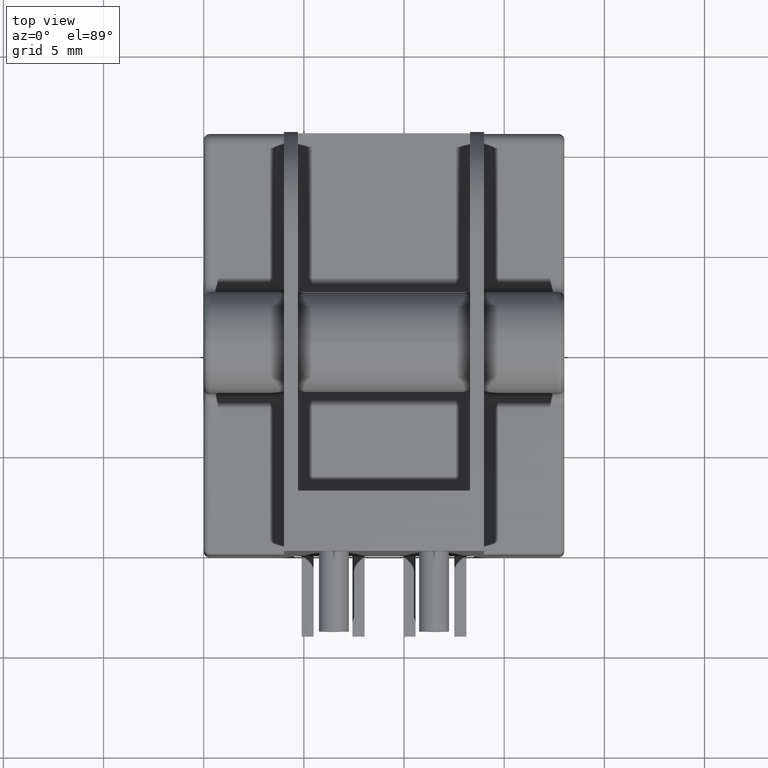
[diagram: clean part render]
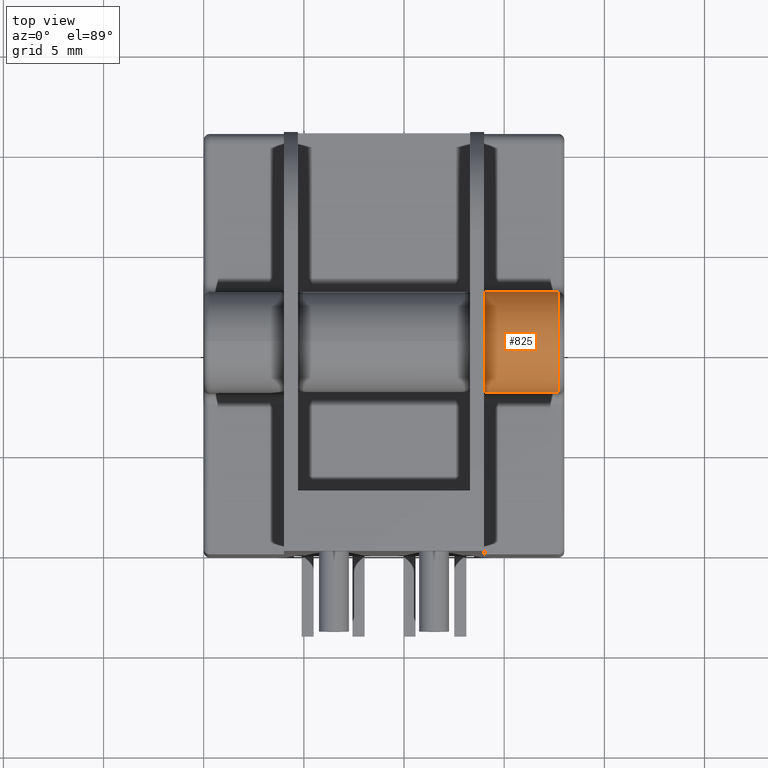
[diagram: same view with one face highlighted and labeled with its STEP entity id]
A machine part, top view. The second image highlights one B-rep face of the part: STEP entity #825.
In plain terms, the highlighted cylindrical surface (partial cylindrical patch) has radius 2.5 mm, axis along (1, -0, -0).
Its self-contained STEP definition (entity closure, byte-faithful):
#384 = EDGE_LOOP ( 'NONE', ( #5328, #5781, #1642, #4484 ) ) ;
#411 = VERTEX_POINT ( 'NONE', #2262 ) ;
#535 = VERTEX_POINT ( 'NONE', #3264 ) ;
#643 = AXIS2_PLACEMENT_3D ( 'NONE', #4830, #2014, #1088 ) ;
#825 = ADVANCED_FACE ( 'NONE', ( #5020 ), #2459, .T. ) ;
#1068 = CARTESIAN_POINT ( 'NONE',  ( 17.69999999999999600, 7.999999999999998200, -4.713312682840790300 ) ) ;
#1088 = DIRECTION ( 'NONE',  ( 0.0000000000000000000, 6.938893903907227400E-016, -1.000000000000000000 ) ) ;
#1149 = CARTESIAN_POINT ( 'NONE',  ( 13.99999999999999800, 12.99999999999999800, -4.713312682840791200 ) ) ;
#1612 = LINE ( 'NONE', #2694, #2266 ) ;
#1642 = ORIENTED_EDGE ( 'NONE', *, *, #3779, .F. ) ;
#1802 = EDGE_CURVE ( 'NONE', #411, #5550, #4363, .T. ) ;
#2014 = DIRECTION ( 'NONE',  ( -1.000000000000000000, -0.0000000000000000000, -0.0000000000000000000 ) ) ;
#2089 = DIRECTION ( 'NONE',  ( -1.000000000000000000, -0.0000000000000000000, -0.0000000000000000000 ) ) ;
#2262 = CARTESIAN_POINT ( 'NONE',  ( 13.99999999999999800, 7.999999999999998200, -4.713312682840790300 ) ) ;
#2266 = VECTOR ( 'NONE', #5459, 1000.000000000000000 ) ;
#2459 = CYLINDRICAL_SURFACE ( 'NONE', #2685, 2.500000000000000400 ) ;
#2551 = CARTESIAN_POINT ( 'NONE',  ( 13.99999999999999800, 10.49999999999999800, -4.713312682840791200 ) ) ;
#2685 = AXIS2_PLACEMENT_3D ( 'NONE', #2551, #5329, #5347 ) ;
#2694 = CARTESIAN_POINT ( 'NONE',  ( 13.99999999999999800, 12.99999999999999800, -4.713312682840791200 ) ) ;
#2785 = DIRECTION ( 'NONE',  ( 1.000000000000000000, -0.0000000000000000000, -0.0000000000000000000 ) ) ;
#3186 = VECTOR ( 'NONE', #2785, 1000.000000000000000 ) ;
#3264 = CARTESIAN_POINT ( 'NONE',  ( 17.69999999999999600, 12.99999999999999800, -4.713312682840791200 ) ) ;
#3779 = EDGE_CURVE ( 'NONE', #5637, #535, #1612, .T. ) ;
#4185 = EDGE_CURVE ( 'NONE', #411, #5637, #5585, .T. ) ;
#4363 = LINE ( 'NONE', #5624, #3186 ) ;
#4484 = ORIENTED_EDGE ( 'NONE', *, *, #4185, .F. ) ;
#4763 = AXIS2_PLACEMENT_3D ( 'NONE', #4929, #2089, #5861 ) ;
#4830 = CARTESIAN_POINT ( 'NONE',  ( 17.69999999999999600, 10.49999999999999800, -4.713312682840791200 ) ) ;
#4929 = CARTESIAN_POINT ( 'NONE',  ( 13.99999999999999800, 10.49999999999999800, -4.713312682840791200 ) ) ;
#5020 = FACE_OUTER_BOUND ( 'NONE', #384, .T. ) ;
#5296 = CIRCLE ( 'NONE', #643, 2.500000000000000400 ) ;
#5328 = ORIENTED_EDGE ( 'NONE', *, *, #1802, .T. ) ;
#5329 = DIRECTION ( 'NONE',  ( 1.000000000000000000, -0.0000000000000000000, -0.0000000000000000000 ) ) ;
#5347 = DIRECTION ( 'NONE',  ( 0.0000000000000000000, 0.0000000000000000000, -1.000000000000000000 ) ) ;
#5459 = DIRECTION ( 'NONE',  ( 1.000000000000000000, -0.0000000000000000000, -0.0000000000000000000 ) ) ;
#5525 = EDGE_CURVE ( 'NONE', #5550, #535, #5296, .T. ) ;
#5550 = VERTEX_POINT ( 'NONE', #1068 ) ;
#5585 = CIRCLE ( 'NONE', #4763, 2.500000000000000400 ) ;
#5624 = CARTESIAN_POINT ( 'NONE',  ( 13.99999999999999800, 7.999999999999998200, -4.713312682840790300 ) ) ;
#5637 = VERTEX_POINT ( 'NONE', #1149 ) ;
#5781 = ORIENTED_EDGE ( 'NONE', *, *, #5525, .T. ) ;
#5861 = DIRECTION ( 'NONE',  ( 0.0000000000000000000, 0.0000000000000000000, -1.000000000000000000 ) ) ;